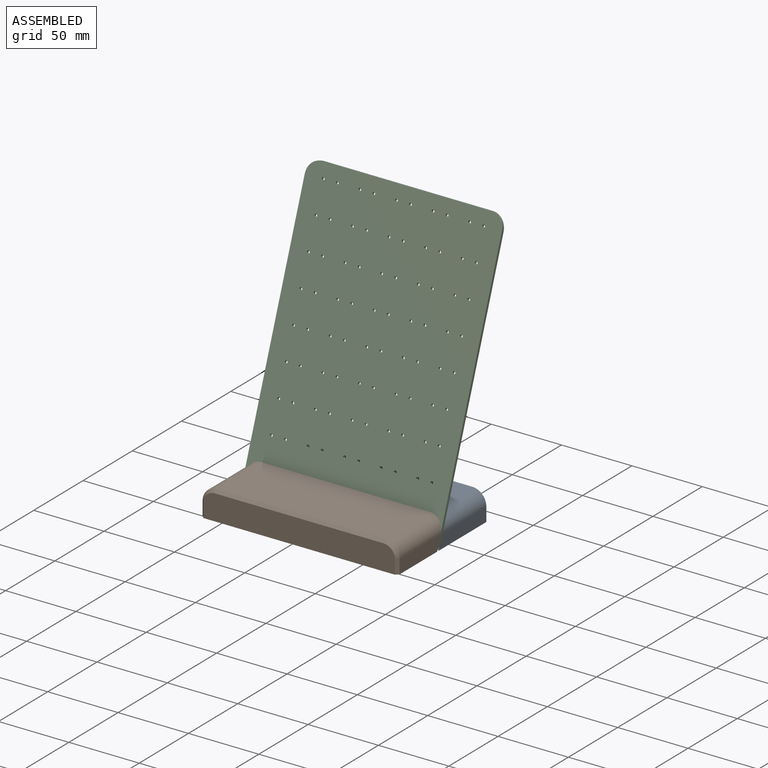
[diagram: assembled view]
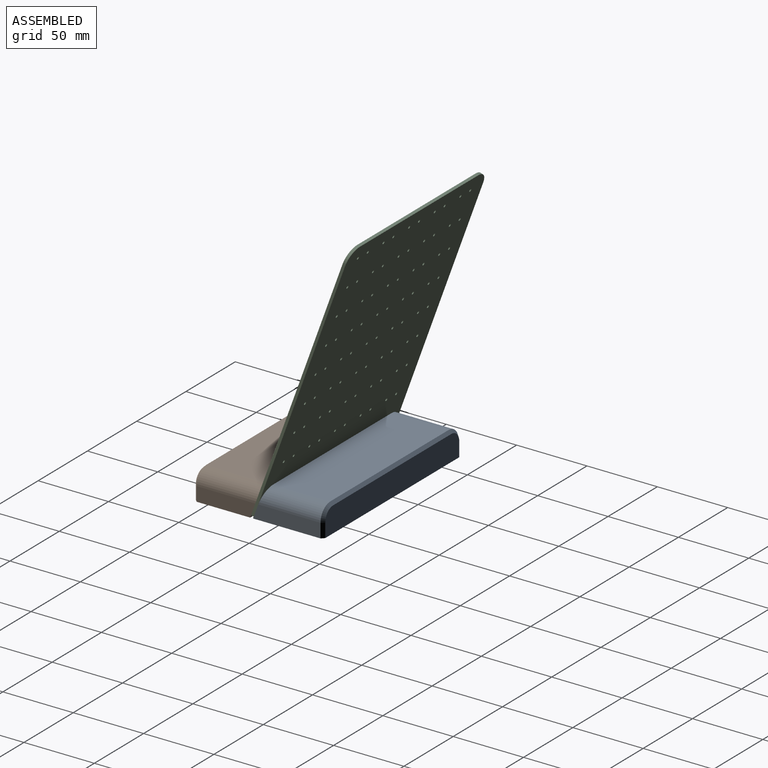
[diagram: assembled view, second angle]
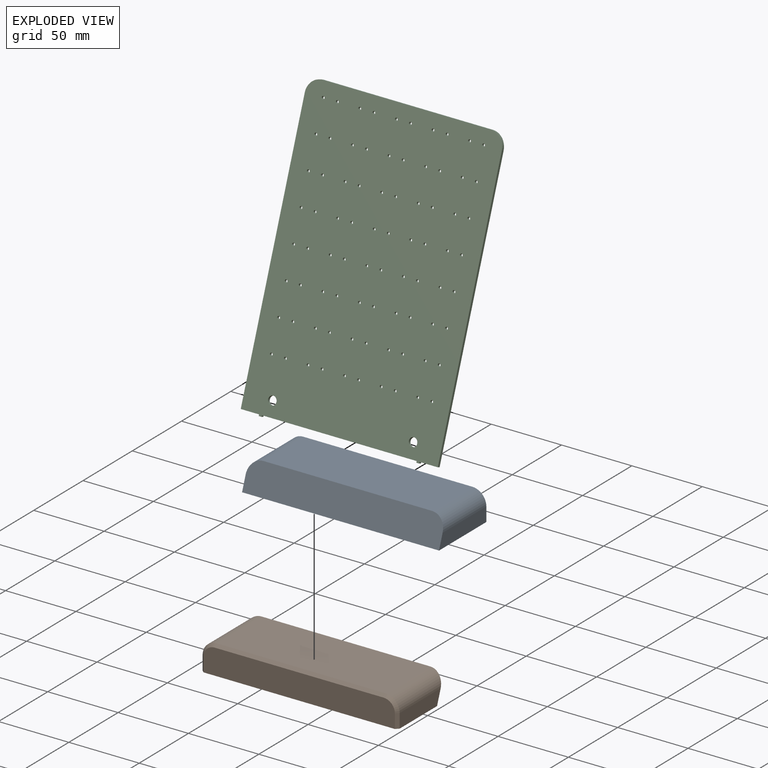
[diagram: exploded view]
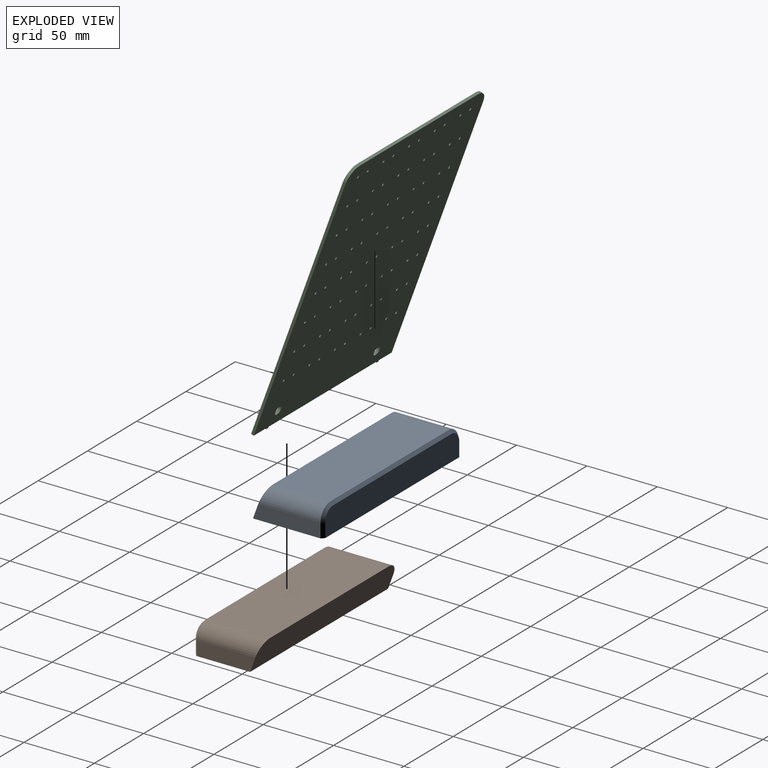
[diagram: exploded view, second angle]
ASSEMBLY  parts=3 mates=2
PART A: 13 faces, bbox 140x50x20 mm
  f0: plane 136x18mm, normal (0,1,0), area 2420.5mm2, adj f1,f2,f3,f4,f5,f11
  f1: plane 120x2mm, normal (0,0.71,0.71), area 339.4mm2, adj f0,f4,f5,f10
  f2: plane 10x2mm, normal (0.71,0.71,0), area 28.3mm2, adj f0,f5,f9,f11
  f3: plane 10x2mm, normal (-0.71,0.71,0), area 28.3mm2, adj f0,f4,f7,f11
  f4: cone r=8mm half-angle=45deg, axis (0,-1,0), area 40mm2, adj f0,f1,f3,f6
  f5: cone r=8mm half-angle=45deg, axis (0,-1,0), area 40mm2, adj f0,f1,f2,f8
  f6: cylinder r=10mm len=44.36mm, axis (0,-1,0), area 660.4mm2, adj f4,f7,f10,f12
  f7: plane 48x10mm, normal (-1,0,0), area 461.8mm2, adj f3,f6,f11,f12
  f8: cylinder r=10mm len=44.36mm, axis (0,1,0), area 660.4mm2, adj f5,f9,f10,f12
  f9: plane 48x10mm, normal (1,0,0), area 461.8mm2, adj f2,f8,f11,f12
  f10: plane 120x40.72mm, normal (0,0,1), area 4886.5mm2, adj f1,f6,f8,f12
  f11: plane 140x50mm, normal (0,0,-1), area 6996mm2, adj f0,f2,f3,f7,f9,f12
  f12: plane 140x20mm, normal (0,-0.94,0.34), area 2934mm2, adj f6,f7,f8,f9,f10,f11
PART B: 13 faces, bbox 140x47.3x20 mm
  f0: plane 140x40mm, normal (0,0,-1), area 5596mm2, adj f2,f3,f6,f7,f11,f12
  f1: plane 120x45.28mm, normal (0,0,1), area 5433.5mm2, adj f4,f5,f9,f12
  f2: plane 41.64x10mm, normal (1,0,0), area 398.2mm2, adj f0,f5,f7,f12
  f3: plane 41.64x10mm, normal (-1,0,0), area 398.2mm2, adj f0,f4,f11,f12
  f4: cylinder r=10mm len=45.28mm, axis (0,-1,0), area 690.5mm2, adj f1,f3,f10,f12
  f5: cylinder r=10mm len=45.28mm, axis (0,1,0), area 690.5mm2, adj f1,f2,f8,f12
  f6: plane 136x18mm, normal (0,-1,0), area 2420.5mm2, adj f0,f7,f8,f9,f10,f11
  f7: plane 10x2mm, normal (0.71,-0.71,0), area 28.3mm2, adj f0,f2,f6,f8
  f8: cone r=8mm half-angle=45deg, axis (0,1,0), area 40mm2, adj f5,f6,f7,f9
  f9: plane 120x2mm, normal (0,-0.71,0.71), area 339.4mm2, adj f1,f6,f8,f10
  f10: cone r=8mm half-angle=45deg, axis (0,1,0), area 40mm2, adj f4,f6,f9,f11
  f11: plane 10x2mm, normal (-0.71,-0.71,0), area 28.3mm2, adj f0,f3,f6,f10
  f12: plane 140x20mm, normal (0,0.94,-0.34), area 2934mm2, adj f0,f1,f2,f3,f4,f5
PART C: 98 faces, bbox 140x70.6x189.6 mm
  f0: cylinder r=1mm len=2.56mm, axis (0,-0.94,0.34), area 12.6mm2, adj f90,f91
  f1: cylinder r=1mm len=2.56mm, axis (0,-0.94,0.34), area 12.6mm2, adj f90,f91
  f2: cylinder r=1mm len=2.56mm, axis (0,-0.94,0.34), area 12.6mm2, adj f90,f91
  f3: cylinder r=1mm len=2.56mm, axis (0,-0.94,0.34), area 12.6mm2, adj f90,f91
  f4: cylinder r=1mm len=2.56mm, axis (0,-0.94,0.34), area 12.6mm2, adj f90,f91
  f5: cylinder r=1mm len=2.56mm, axis (0,-0.94,0.34), area 12.6mm2, adj f90,f91
  f6: cylinder r=1mm len=2.56mm, axis (0,-0.94,0.34), area 12.6mm2, adj f90,f91
  f7: cylinder r=1mm len=2.56mm, axis (0,-0.94,0.34), area 12.6mm2, adj f90,f91
  f8: cylinder r=1mm len=2.56mm, axis (0,-0.94,0.34), area 12.6mm2, adj f90,f91
  f9: cylinder r=1mm len=2.56mm, axis (0,-0.94,0.34), area 12.6mm2, adj f90,f91
  f10: cylinder r=1mm len=2.56mm, axis (0,-0.94,0.34), area 12.6mm2, adj f90,f91
  f11: cylinder r=1mm len=2.56mm, axis (0,-0.94,0.34), area 12.6mm2, adj f90,f91
  f12: cylinder r=1mm len=2.56mm, axis (0,-0.94,0.34), area 12.6mm2, adj f90,f91
  f13: cylinder r=1mm len=2.56mm, axis (0,-0.94,0.34), area 12.6mm2, adj f90,f91
  f14: cylinder r=1mm len=2.56mm, axis (0,-0.94,0.34), area 12.6mm2, adj f90,f91
  f15: cylinder r=1mm len=2.56mm, axis (0,-0.94,0.34), area 12.6mm2, adj f90,f91
  f16: cylinder r=1mm len=2.56mm, axis (0,-0.94,0.34), area 12.6mm2, adj f90,f91
  f17: cylinder r=1mm len=2.56mm, axis (0,-0.94,0.34), area 12.6mm2, adj f90,f91
  f18: cylinder r=1mm len=2.56mm, axis (0,-0.94,0.34), area 12.6mm2, adj f90,f91
  f19: cylinder r=1mm len=2.56mm, axis (0,-0.94,0.34), area 12.6mm2, adj f90,f91
  f20: cylinder r=1mm len=2.56mm, axis (0,-0.94,0.34), area 12.6mm2, adj f90,f91
  f21: cylinder r=1mm len=2.56mm, axis (0,-0.94,0.34), area 12.6mm2, adj f90,f91
  f22: cylinder r=1mm len=2.56mm, axis (0,-0.94,0.34), area 12.6mm2, adj f90,f91
  f23: cylinder r=1mm len=2.56mm, axis (0,-0.94,0.34), area 12.6mm2, adj f90,f91
  f24: cylinder r=1mm len=2.56mm, axis (0,-0.94,0.34), area 12.6mm2, adj f90,f91
  f25: cylinder r=1mm len=2.56mm, axis (0,-0.94,0.34), area 12.6mm2, adj f90,f91
  f26: cylinder r=1mm len=2.56mm, axis (0,-0.94,0.34), area 12.6mm2, adj f90,f91
  f27: cylinder r=1mm len=2.56mm, axis (0,-0.94,0.34), area 12.6mm2, adj f90,f91
  f28: cylinder r=1mm len=2.56mm, axis (0,-0.94,0.34), area 12.6mm2, adj f90,f91
  f29: cylinder r=1mm len=2.56mm, axis (0,-0.94,0.34), area 12.6mm2, adj f90,f91
  f30: cylinder r=1mm len=2.56mm, axis (0,-0.94,0.34), area 12.6mm2, adj f90,f91
  f31: cylinder r=1mm len=2.56mm, axis (0,-0.94,0.34), area 12.6mm2, adj f90,f91
  f32: cylinder r=1mm len=2.56mm, axis (0,-0.94,0.34), area 12.6mm2, adj f90,f91
  f33: cylinder r=1mm len=2.56mm, axis (0,-0.94,0.34), area 12.6mm2, adj f90,f91
  f34: cylinder r=1mm len=2.56mm, axis (0,-0.94,0.34), area 12.6mm2, adj f90,f91
  f35: cylinder r=1mm len=2.56mm, axis (0,-0.94,0.34), area 12.6mm2, adj f90,f91
  f36: cylinder r=1mm len=2.56mm, axis (0,-0.94,0.34), area 12.6mm2, adj f90,f91
  f37: cylinder r=1mm len=2.56mm, axis (0,-0.94,0.34), area 12.6mm2, adj f90,f91
  f38: cylinder r=1mm len=2.56mm, axis (0,-0.94,0.34), area 12.6mm2, adj f90,f91
  f39: cylinder r=1mm len=2.56mm, axis (0,-0.94,0.34), area 12.6mm2, adj f90,f91
  f40: cylinder r=1mm len=2.56mm, axis (0,-0.94,0.34), area 12.6mm2, adj f90,f91
  f41: cylinder r=1mm len=2.56mm, axis (0,-0.94,0.34), area 12.6mm2, adj f90,f91
  f42: cylinder r=1mm len=2.56mm, axis (0,-0.94,0.34), area 12.6mm2, adj f90,f91
  f43: cylinder r=1mm len=2.56mm, axis (0,-0.94,0.34), area 12.6mm2, adj f90,f91
  f44: cylinder r=1mm len=2.56mm, axis (0,-0.94,0.34), area 12.6mm2, adj f90,f91
  f45: cylinder r=1mm len=2.56mm, axis (0,-0.94,0.34), area 12.6mm2, adj f90,f91
  f46: cylinder r=1mm len=2.56mm, axis (0,-0.94,0.34), area 12.6mm2, adj f90,f91
  f47: cylinder r=1mm len=2.56mm, axis (0,-0.94,0.34), area 12.6mm2, adj f90,f91
  f48: cylinder r=1mm len=2.56mm, axis (0,-0.94,0.34), area 12.6mm2, adj f90,f91
  f49: cylinder r=1mm len=2.56mm, axis (0,-0.94,0.34), area 12.6mm2, adj f90,f91
  f50: cylinder r=1mm len=2.56mm, axis (0,-0.94,0.34), area 12.6mm2, adj f90,f91
  f51: cylinder r=1mm len=2.56mm, axis (0,-0.94,0.34), area 12.6mm2, adj f90,f91
  f52: cylinder r=1mm len=2.56mm, axis (0,-0.94,0.34), area 12.6mm2, adj f90,f91
  f53: cylinder r=1mm len=2.56mm, axis (0,-0.94,0.34), area 12.6mm2, adj f90,f91
  f54: cylinder r=1mm len=2.56mm, axis (0,-0.94,0.34), area 12.6mm2, adj f90,f91
  f55: cylinder r=1mm len=2.56mm, axis (0,-0.94,0.34), area 12.6mm2, adj f90,f91
  f56: cylinder r=1mm len=2.56mm, axis (0,-0.94,0.34), area 12.6mm2, adj f90,f91
  f57: cylinder r=1mm len=2.56mm, axis (0,-0.94,0.34), area 12.6mm2, adj f90,f91
  f58: cylinder r=1mm len=2.56mm, axis (0,-0.94,0.34), area 12.6mm2, adj f90,f91
  f59: cylinder r=1mm len=2.56mm, axis (0,-0.94,0.34), area 12.6mm2, adj f90,f91
  f60: cylinder r=1mm len=2.56mm, axis (0,-0.94,0.34), area 12.6mm2, adj f90,f91
  f61: cylinder r=1mm len=2.56mm, axis (0,-0.94,0.34), area 12.6mm2, adj f90,f91
  f62: cylinder r=1mm len=2.56mm, axis (0,-0.94,0.34), area 12.6mm2, adj f90,f91
  f63: cylinder r=1mm len=2.56mm, axis (0,-0.94,0.34), area 12.6mm2, adj f90,f91
  f64: cylinder r=1mm len=2.56mm, axis (0,-0.94,0.34), area 12.6mm2, adj f90,f91
  f65: cylinder r=1mm len=2.56mm, axis (0,-0.94,0.34), area 12.6mm2, adj f90,f91
  f66: cylinder r=1mm len=2.56mm, axis (0,-0.94,0.34), area 12.6mm2, adj f90,f91
  f67: cylinder r=1mm len=2.56mm, axis (0,-0.94,0.34), area 12.6mm2, adj f90,f91
  f68: cylinder r=1mm len=2.56mm, axis (0,-0.94,0.34), area 12.6mm2, adj f90,f91
  f69: cylinder r=1mm len=2.56mm, axis (0,-0.94,0.34), area 12.6mm2, adj f90,f91
  f70: cylinder r=1mm len=2.56mm, axis (0,-0.94,0.34), area 12.6mm2, adj f90,f91
  f71: cylinder r=1mm len=2.56mm, axis (0,-0.94,0.34), area 12.6mm2, adj f90,f91
  f72: cylinder r=1mm len=2.56mm, axis (0,-0.94,0.34), area 12.6mm2, adj f90,f91
  f73: cylinder r=1mm len=2.56mm, axis (0,-0.94,0.34), area 12.6mm2, adj f90,f91
  f74: cylinder r=1mm len=2.56mm, axis (0,-0.94,0.34), area 12.6mm2, adj f90,f91
  f75: cylinder r=1mm len=2.56mm, axis (0,-0.94,0.34), area 12.6mm2, adj f90,f91
  f76: cylinder r=1mm len=2.56mm, axis (0,-0.94,0.34), area 12.6mm2, adj f90,f91
  f77: cylinder r=1mm len=2.56mm, axis (0,-0.94,0.34), area 12.6mm2, adj f90,f91
  f78: plane 110x1.88mm, normal (0,-0.34,-0.94), area 220mm2, adj f79,f89,f90,f91
  f79: plane 2.22x1.62mm, normal (1,0,0), area 2mm2, adj f78,f80,f90,f91
  f80: plane 2x1.88mm, normal (0,-0.34,-0.94), area 4mm2, adj f79,f81,f90,f91
  f81: plane 2.22x1.62mm, normal (-1,0,0), area 2mm2, adj f80,f82,f90,f91
  f82: plane 13x1.88mm, normal (0,-0.34,-0.94), area 26mm2, adj f81,f83,f90,f91
  f83: plane 179.23x66.86mm, normal (-1,0,0), area 380mm2, adj f82,f90,f91,f92
  f84: plane 120x1.88mm, normal (0,0.34,0.94), area 240mm2, adj f90,f91,f92,f93
  f85: plane 179.23x66.86mm, normal (1,0,0), area 380mm2, adj f86,f90,f91,f93
  f86: plane 13x1.88mm, normal (0,-0.34,-0.94), area 26mm2, adj f85,f87,f90,f91
  f87: plane 2.22x1.62mm, normal (1,0,0), area 2mm2, adj f86,f88,f90,f91
  f88: plane 2x1.88mm, normal (0,-0.34,-0.94), area 4mm2, adj f87,f89,f90,f91
  f89: plane 2.22x1.62mm, normal (-1,0,0), area 2mm2, adj f78,f88,f90,f91
  f90: plane 188.88x140mm, normal (0,0.94,-0.34), area 27653.2mm2, adj f0,f1,f2,f3,f4,f5,f6,f7
  f91: plane 188.88x140mm, normal (0,-0.94,0.34), area 27653.2mm2, adj f0,f1,f2,f3,f4,f5,f6,f7
  f92: cylinder r=10mm len=10.08mm, axis (0,0.94,-0.34), area 31.4mm2, adj f83,f84,f90,f91
  f93: cylinder r=10mm len=10.08mm, axis (0,-0.94,0.34), area 31.4mm2, adj f84,f85,f90,f91
  f94: cylinder r=1mm len=2.56mm, axis (0,-0.94,0.34), area 12.6mm2, adj f90,f91
  f95: cylinder r=1mm len=2.56mm, axis (0,-0.94,0.34), area 12.6mm2, adj f90,f91
  f96: cylinder r=3mm len=6.32mm, axis (0,-0.94,0.34), area 37.7mm2, adj f90,f91
  f97: cylinder r=3mm len=6.32mm, axis (0,-0.94,0.34), area 37.7mm2, adj f90,f91
PLACE A t=(-18.22,8.99,-8.27)mm
PLACE B t=(-18.22,6.99,-8.27)mm
PLACE C t=(-18.22,7.68,-6.4)mm
MATE fastened A.f11 <-> B.f0  axis (0,0,-1) through (-18.22,8.99,-8.27)mm
MATE fastened C.f91 <-> B.f12  axis (0,-0.94,0.34) through (-18.22,7.68,-6.4)mm
